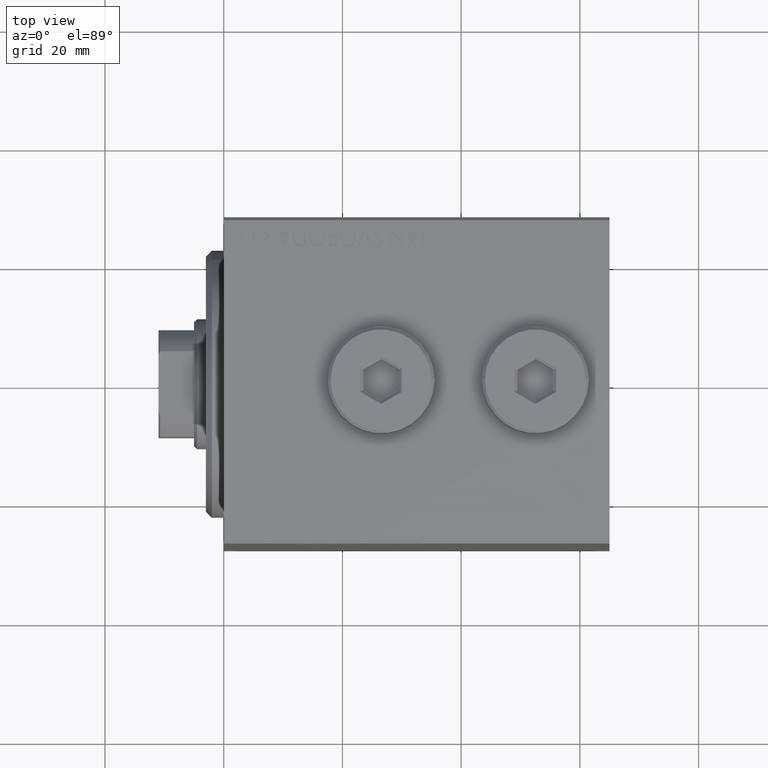
[diagram: clean part render]
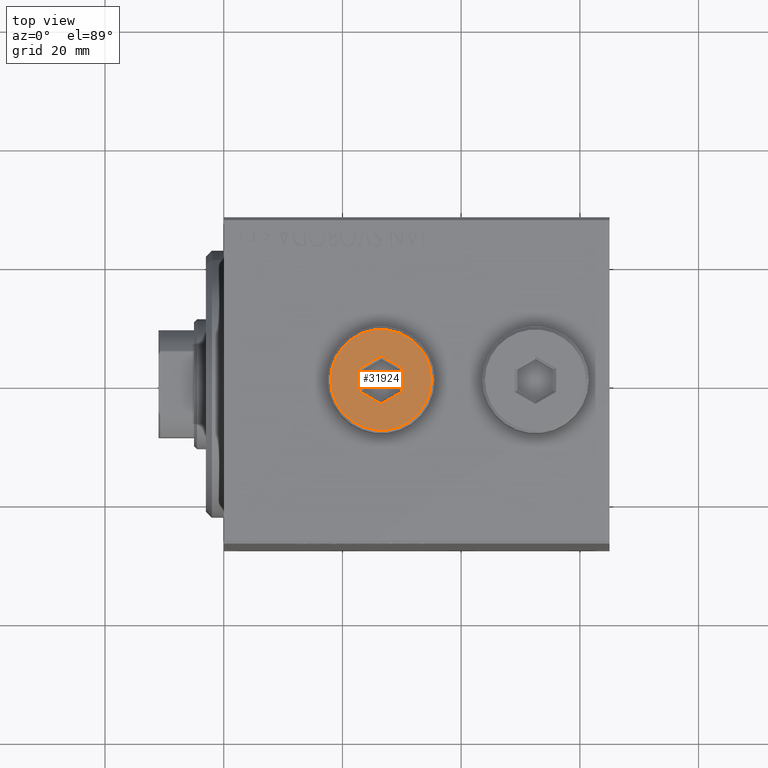
[diagram: same view with one face highlighted and labeled with its STEP entity id]
A machine part, top view. The second image highlights one B-rep face of the part: STEP entity #31924.
In plain terms, the highlighted planar face has unit normal (0, 0, 1).
Its self-contained STEP definition (entity closure, byte-faithful):
#96 = CIRCLE ( 'NONE', #40878, 8.500000000000010658 ) ;
#757 = CARTESIAN_POINT ( 'NONE',  ( -3.500000000000006661, 2.020725942163692945, 5.000000000000000000 ) ) ;
#1188 = DIRECTION ( 'NONE',  ( 0.000000000000000000, 0.000000000000000000, 1.000000000000000000 ) ) ;
#1288 = CARTESIAN_POINT ( 'NONE',  ( 3.500000000000006661, -1.732050807568878303, 5.000000000000000000 ) ) ;
#1913 = EDGE_CURVE ( 'NONE', #4925, #42044, #5832, .T. ) ;
#2225 = VECTOR ( 'NONE', #31363, 1000.000000000000000 ) ;
#3306 = CARTESIAN_POINT ( 'NONE',  ( 3.500000000000006661, -2.020725942163693833, 5.000000000000000000 ) ) ;
#3522 = CARTESIAN_POINT ( 'NONE',  ( 0.2500000000000027756, -3.897114317029979347, 5.000000000000000000 ) ) ;
#4925 = VERTEX_POINT ( 'NONE', #757 ) ;
#5287 = DIRECTION ( 'NONE',  ( 1.000000000000000000, 0.000000000000000000, -0.000000000000000000 ) ) ;
#5331 = EDGE_CURVE ( 'NONE', #42044, #29895, #19770, .T. ) ;
#5506 = FACE_OUTER_BOUND ( 'NONE', #14076, .T. ) ;
#5604 = VECTOR ( 'NONE', #16334, 1000.000000000000000 ) ;
#5832 = LINE ( 'NONE', #9711, #5604 ) ;
#5947 = DIRECTION ( 'NONE',  ( 0.000000000000000000, 0.000000000000000000, 1.000000000000000000 ) ) ;
#6291 = DIRECTION ( 'NONE',  ( -0.8660254037844385966, 0.4999999999999999445, 0.000000000000000000 ) ) ;
#6946 = LINE ( 'NONE', #3522, #2225 ) ;
#7637 = EDGE_CURVE ( 'NONE', #16778, #15174, #37719, .T. ) ;
#8738 = CARTESIAN_POINT ( 'NONE',  ( 3.500000000000006661, 2.020725942163694722, 5.000000000000000000 ) ) ;
#9588 = CARTESIAN_POINT ( 'NONE',  ( -3.500000000000006661, -2.020725942163694278, 5.000000000000000000 ) ) ;
#9711 = CARTESIAN_POINT ( 'NONE',  ( -0.2500000000000027756, 3.897114317029978459, 5.000000000000000000 ) ) ;
#10075 = VECTOR ( 'NONE', #26610, 1000.000000000000000 ) ;
#10099 = ORIENTED_EDGE ( 'NONE', *, *, #31444, .T. ) ;
#10627 = VERTEX_POINT ( 'NONE', #9588 ) ;
#10801 = VERTEX_POINT ( 'NONE', #3306 ) ;
#10853 = ORIENTED_EDGE ( 'NONE', *, *, #11915, .T. ) ;
#11915 = EDGE_CURVE ( 'NONE', #29895, #10801, #43466, .T. ) ;
#12130 = CARTESIAN_POINT ( 'NONE',  ( 0.000000000000000000, 0.000000000000000000, 5.000000000000000000 ) ) ;
#12632 = DIRECTION ( 'NONE',  ( 1.000000000000000000, 0.000000000000000000, 0.000000000000000000 ) ) ;
#14076 = EDGE_LOOP ( 'NONE', ( #37141, #15119 ) ) ;
#14138 = EDGE_CURVE ( 'NONE', #15174, #16778, #96, .T. ) ;
#15119 = ORIENTED_EDGE ( 'NONE', *, *, #14138, .T. ) ;
#15174 = VERTEX_POINT ( 'NONE', #44951 ) ;
#16003 = VECTOR ( 'NONE', #6291, 1000.000000000000114 ) ;
#16334 = DIRECTION ( 'NONE',  ( 0.8660254037844387076, 0.4999999999999998335, 0.000000000000000000 ) ) ;
#16778 = VERTEX_POINT ( 'NONE', #27060 ) ;
#18619 = DIRECTION ( 'NONE',  ( 0.000000000000000000, -1.000000000000000000, 0.000000000000000000 ) ) ;
#19412 = PLANE ( 'NONE',  #42960 ) ;
#19770 = LINE ( 'NONE', #29823, #10075 ) ;
#21596 = CARTESIAN_POINT ( 'NONE',  ( -3.500000000000006661, 1.732050807568878081, 5.000000000000000000 ) ) ;
#21618 = CARTESIAN_POINT ( 'NONE',  ( 1.590596867181068292E-15, 4.041451884327386779, 5.000000000000000000 ) ) ;
#21828 = LINE ( 'NONE', #21596, #33620 ) ;
#23030 = DIRECTION ( 'NONE',  ( 1.000000000000000000, 0.000000000000000000, 0.000000000000000000 ) ) ;
#25484 = DIRECTION ( 'NONE',  ( 0.000000000000000000, 1.000000000000000000, 0.000000000000000000 ) ) ;
#26036 = AXIS2_PLACEMENT_3D ( 'NONE', #40678, #40228, #12632 ) ;
#26227 = CARTESIAN_POINT ( 'NONE',  ( -1.006139216460143630E-15, -4.041451884327387667, 5.000000000000000000 ) ) ;
#26610 = DIRECTION ( 'NONE',  ( 0.8660254037844387076, -0.4999999999999998890, 0.000000000000000000 ) ) ;
#27060 = CARTESIAN_POINT ( 'NONE',  ( -8.500000000000010658, 0.000000000000000000, 5.000000000000000000 ) ) ;
#27287 = CARTESIAN_POINT ( 'NONE',  ( -3.250000000000003109, -2.165063509461102598, 5.000000000000000000 ) ) ;
#29823 = CARTESIAN_POINT ( 'NONE',  ( 3.250000000000003109, 2.165063509461103042, 5.000000000000000000 ) ) ;
#29895 = VERTEX_POINT ( 'NONE', #8738 ) ;
#30067 = ORIENTED_EDGE ( 'NONE', *, *, #5331, .T. ) ;
#31363 = DIRECTION ( 'NONE',  ( -0.8660254037844387076, -0.4999999999999998890, 0.000000000000000000 ) ) ;
#31444 = EDGE_CURVE ( 'NONE', #39572, #10627, #37787, .T. ) ;
#31677 = ORIENTED_EDGE ( 'NONE', *, *, #34948, .T. ) ;
#31924 = ADVANCED_FACE ( 'NONE', ( #43373, #5506 ), #19412, .T. ) ;
#32458 = ORIENTED_EDGE ( 'NONE', *, *, #33636, .T. ) ;
#33620 = VECTOR ( 'NONE', #25484, 1000.000000000000000 ) ;
#33636 = EDGE_CURVE ( 'NONE', #10801, #39572, #6946, .T. ) ;
#33787 = CARTESIAN_POINT ( 'NONE',  ( 0.000000000000000000, 0.000000000000000000, 5.000000000000000000 ) ) ;
#34948 = EDGE_CURVE ( 'NONE', #10627, #4925, #21828, .T. ) ;
#36363 = VECTOR ( 'NONE', #18619, 1000.000000000000000 ) ;
#37141 = ORIENTED_EDGE ( 'NONE', *, *, #7637, .T. ) ;
#37719 = CIRCLE ( 'NONE', #26036, 8.500000000000010658 ) ;
#37787 = LINE ( 'NONE', #27287, #16003 ) ;
#39572 = VERTEX_POINT ( 'NONE', #26227 ) ;
#40228 = DIRECTION ( 'NONE',  ( 0.000000000000000000, 0.000000000000000000, 1.000000000000000000 ) ) ;
#40513 = ORIENTED_EDGE ( 'NONE', *, *, #1913, .T. ) ;
#40678 = CARTESIAN_POINT ( 'NONE',  ( 0.000000000000000000, 0.000000000000000000, 5.000000000000000000 ) ) ;
#40878 = AXIS2_PLACEMENT_3D ( 'NONE', #33787, #5947, #23030 ) ;
#42044 = VERTEX_POINT ( 'NONE', #21618 ) ;
#42960 = AXIS2_PLACEMENT_3D ( 'NONE', #12130, #1188, #5287 ) ;
#43373 = FACE_BOUND ( 'NONE', #44753, .T. ) ;
#43466 = LINE ( 'NONE', #1288, #36363 ) ;
#44753 = EDGE_LOOP ( 'NONE', ( #31677, #40513, #30067, #10853, #32458, #10099 ) ) ;
#44951 = CARTESIAN_POINT ( 'NONE',  ( 8.500000000000010658, 1.071565949253934716E-15, 5.000000000000000000 ) ) ;